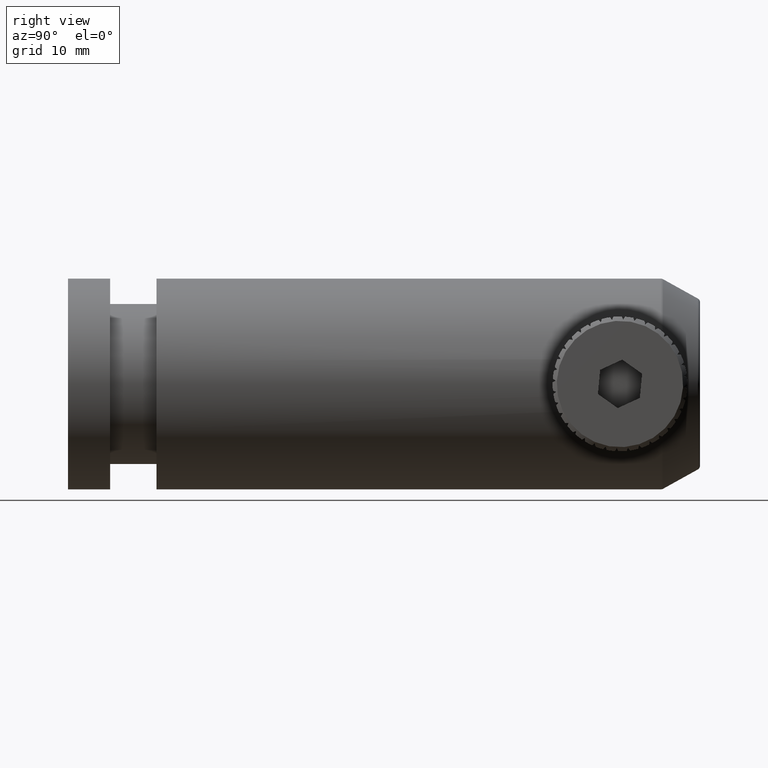
[diagram: clean part render]
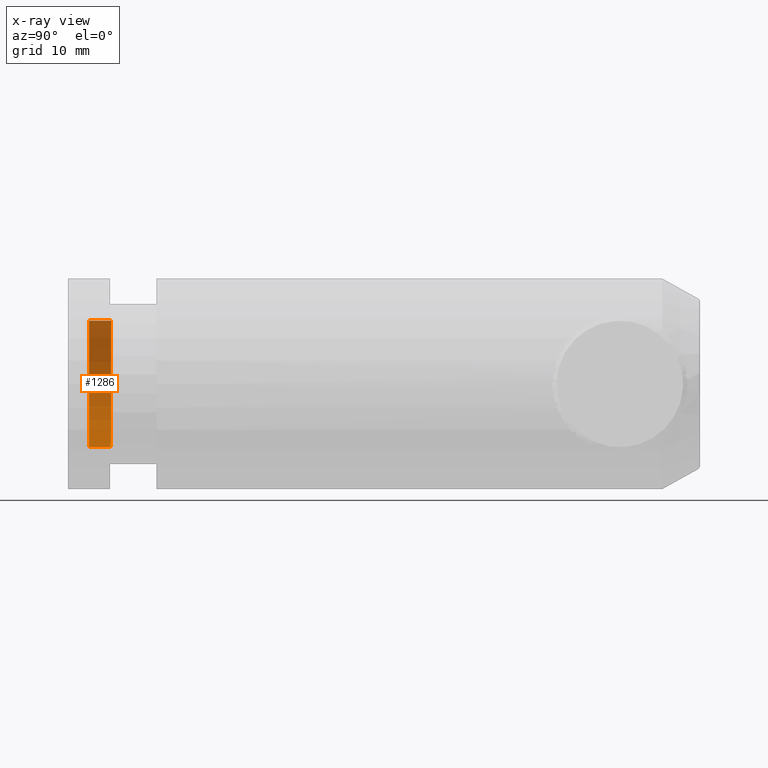
[diagram: x-ray — body ghosted, one internal face saturated and labeled with its STEP entity id]
A machine part, right view, then the same camera in x-ray: the body is ghosted and one INTERNAL B-rep face — a face not visible from any outside direction — is saturated and labeled: STEP entity #1286.
In plain terms, the highlighted cylindrical surface (partial cylindrical patch) has radius 7.5 mm, axis along (-0, -1, -0).
Its self-contained STEP definition (entity closure, byte-faithful):
#277 = CARTESIAN_POINT ( 'NONE',  ( -3.204778668925409857, -9.313612059609837956, -7.703719777548943412E-31 ) ) ;
#691 = DIRECTION ( 'NONE',  ( 0.0000000000000000000, 0.0000000000000000000, -1.000000000000000000 ) ) ;
#924 = CARTESIAN_POINT ( 'NONE',  ( -3.204778668925409857, 0.1863879403901629872, -7.500000000000000000 ) ) ;
#1047 = CARTESIAN_POINT ( 'NONE',  ( -3.204778668925409857, -6.713612059609838312, -7.703719777548943412E-31 ) ) ;
#1107 = CIRCLE ( 'NONE', #1834, 7.500000000000000000 ) ;
#1286 = ADVANCED_FACE ( 'NONE', ( #2724 ), #9059, .F. ) ;
#1508 = CARTESIAN_POINT ( 'NONE',  ( -3.204778668925409857, -9.313612059609837956, -7.500000000000000000 ) ) ;
#1834 = AXIS2_PLACEMENT_3D ( 'NONE', #1047, #8028, #7381 ) ;
#1926 = ORIENTED_EDGE ( 'NONE', *, *, #3996, .F. ) ;
#2066 = AXIS2_PLACEMENT_3D ( 'NONE', #8367, #3416, #691 ) ;
#2388 = DIRECTION ( 'NONE',  ( 0.0000000000000000000, 1.000000000000000000, 0.0000000000000000000 ) ) ;
#2587 = AXIS2_PLACEMENT_3D ( 'NONE', #277, #2388, #4534 ) ;
#2724 = FACE_OUTER_BOUND ( 'NONE', #2739, .T. ) ;
#2739 = EDGE_LOOP ( 'NONE', ( #7020, #4110, #6760, #1926 ) ) ;
#3064 = VERTEX_POINT ( 'NONE', #5145 ) ;
#3210 = VERTEX_POINT ( 'NONE', #1508 ) ;
#3416 = DIRECTION ( 'NONE',  ( -0.0000000000000000000, -1.000000000000000000, -0.0000000000000000000 ) ) ;
#3490 = EDGE_CURVE ( 'NONE', #3064, #9025, #1107, .T. ) ;
#3996 = EDGE_CURVE ( 'NONE', #3064, #3210, #5138, .T. ) ;
#4092 = EDGE_CURVE ( 'NONE', #3210, #4422, #4520, .T. ) ;
#4110 = ORIENTED_EDGE ( 'NONE', *, *, #4441, .T. ) ;
#4222 = VECTOR ( 'NONE', #5172, 1000.000000000000000 ) ;
#4339 = CARTESIAN_POINT ( 'NONE',  ( -3.204778668925408969, 0.1863879403901629872, 7.500000000000000000 ) ) ;
#4422 = VERTEX_POINT ( 'NONE', #5221 ) ;
#4441 = EDGE_CURVE ( 'NONE', #9025, #4422, #7943, .T. ) ;
#4520 = CIRCLE ( 'NONE', #2587, 7.500000000000000000 ) ;
#4534 = DIRECTION ( 'NONE',  ( 0.0000000000000000000, 0.0000000000000000000, 1.000000000000000000 ) ) ;
#5131 = CARTESIAN_POINT ( 'NONE',  ( -3.204778668925408969, -6.713612059609838312, 7.500000000000000000 ) ) ;
#5138 = LINE ( 'NONE', #924, #7184 ) ;
#5145 = CARTESIAN_POINT ( 'NONE',  ( -3.204778668925409857, -6.713612059609838312, -7.500000000000000000 ) ) ;
#5172 = DIRECTION ( 'NONE',  ( -0.0000000000000000000, -1.000000000000000000, -0.0000000000000000000 ) ) ;
#5221 = CARTESIAN_POINT ( 'NONE',  ( -3.204778668925408969, -9.313612059609837956, 7.500000000000000000 ) ) ;
#6760 = ORIENTED_EDGE ( 'NONE', *, *, #4092, .F. ) ;
#7020 = ORIENTED_EDGE ( 'NONE', *, *, #3490, .T. ) ;
#7184 = VECTOR ( 'NONE', #8649, 1000.000000000000000 ) ;
#7381 = DIRECTION ( 'NONE',  ( 0.0000000000000000000, 0.0000000000000000000, 1.000000000000000000 ) ) ;
#7943 = LINE ( 'NONE', #4339, #4222 ) ;
#8028 = DIRECTION ( 'NONE',  ( 0.0000000000000000000, 1.000000000000000000, 0.0000000000000000000 ) ) ;
#8367 = CARTESIAN_POINT ( 'NONE',  ( -3.204778668925409857, 0.1863879403901629872, -7.703719777548943412E-31 ) ) ;
#8649 = DIRECTION ( 'NONE',  ( -0.0000000000000000000, -1.000000000000000000, -0.0000000000000000000 ) ) ;
#9025 = VERTEX_POINT ( 'NONE', #5131 ) ;
#9059 = CYLINDRICAL_SURFACE ( 'NONE', #2066, 7.500000000000000000 ) ;